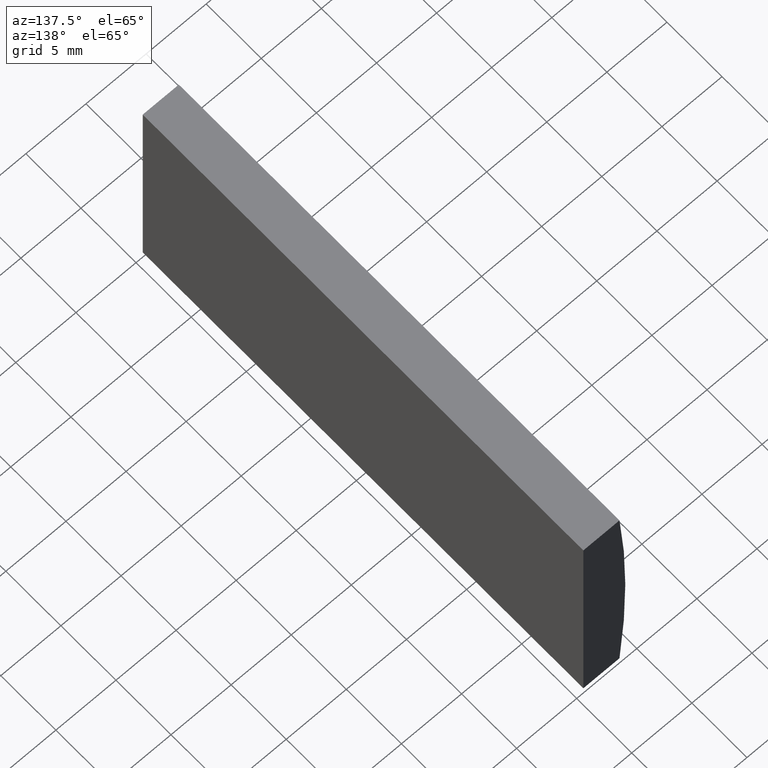
[diagram: clean part render]
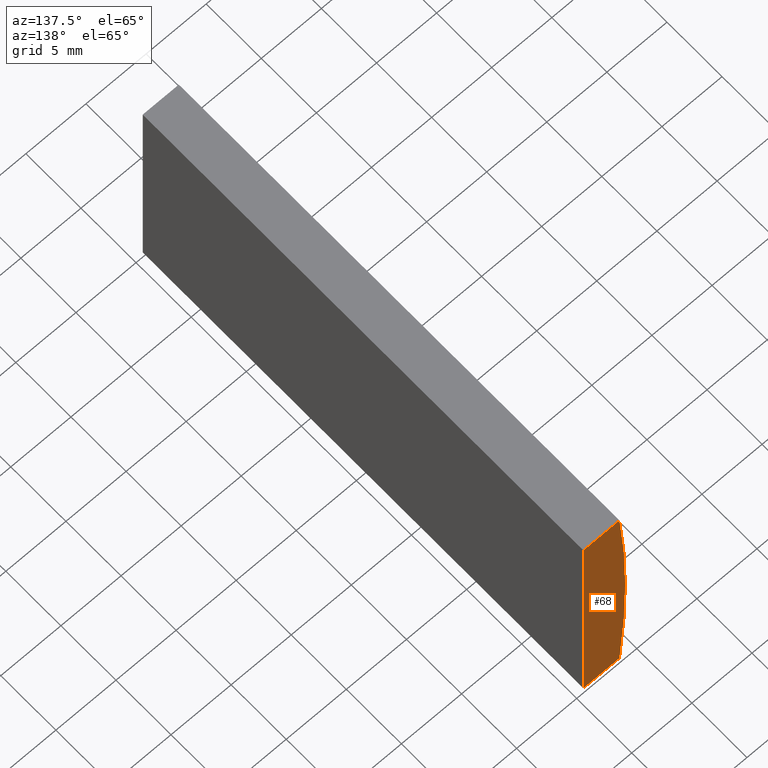
[diagram: same view with one face highlighted and labeled with its STEP entity id]
A machine part, auxiliary view. The second image highlights one B-rep face of the part: STEP entity #68.
In plain terms, the highlighted planar face has unit normal (0, 1, 0).
Its self-contained STEP definition (entity closure, byte-faithful):
#8 = CARTESIAN_POINT ( 'NONE',  ( -95.55479566514874500, 40.00000000000000000, -10.00000000000000400 ) ) ;
#9 = CARTESIAN_POINT ( 'NONE',  ( 4.355204334851265500, 40.00000000000000000, 4.286263797015675000E-017 ) ) ;
#12 = ORIENTED_EDGE ( 'NONE', *, *, #99, .T. ) ;
#22 = EDGE_CURVE ( 'NONE', #28, #172, #199, .T. ) ;
#25 = DIRECTION ( 'NONE',  ( 1.000000000000000000, 0.0000000000000000000, 0.0000000000000000000 ) ) ;
#28 = VERTEX_POINT ( 'NONE', #8 ) ;
#33 = CARTESIAN_POINT ( 'NONE',  ( -98.56010064939295000, 40.00000000000000000, -10.00000000000000000 ) ) ;
#34 = LINE ( 'NONE', #198, #162 ) ;
#35 = VECTOR ( 'NONE', #187, 1000.000000000000000 ) ;
#38 = CARTESIAN_POINT ( 'NONE',  ( -98.56010064939296500, 40.00000000000000000, 10.00000000000000000 ) ) ;
#39 = VERTEX_POINT ( 'NONE', #169 ) ;
#47 = AXIS2_PLACEMENT_3D ( 'NONE', #9, #138, #125 ) ;
#56 = DIRECTION ( 'NONE',  ( 0.0000000000000000000, 0.0000000000000000000, 1.000000000000000000 ) ) ;
#68 = ADVANCED_FACE ( 'NONE', ( #79 ), #75, .T. ) ;
#75 = PLANE ( 'NONE',  #47 ) ;
#79 = FACE_OUTER_BOUND ( 'NONE', #137, .T. ) ;
#84 = VECTOR ( 'NONE', #115, 1000.000000000000000 ) ;
#91 = EDGE_CURVE ( 'NONE', #39, #28, #203, .T. ) ;
#99 = EDGE_CURVE ( 'NONE', #172, #171, #139, .T. ) ;
#106 = EDGE_CURVE ( 'NONE', #171, #39, #34, .T. ) ;
#115 = DIRECTION ( 'NONE',  ( -0.0000000000000000000, -0.0000000000000000000, -1.000000000000000000 ) ) ;
#118 = CARTESIAN_POINT ( 'NONE',  ( 4.355204334851265500, 40.00000000000000000, 4.286263797015675000E-017 ) ) ;
#125 = DIRECTION ( 'NONE',  ( 0.0000000000000000000, -0.0000000000000000000, 1.000000000000000000 ) ) ;
#134 = ORIENTED_EDGE ( 'NONE', *, *, #91, .T. ) ;
#135 = AXIS2_PLACEMENT_3D ( 'NONE', #118, #196, #56 ) ;
#137 = EDGE_LOOP ( 'NONE', ( #12, #147, #134, #154 ) ) ;
#138 = DIRECTION ( 'NONE',  ( 0.0000000000000000000, 1.000000000000000000, 0.0000000000000000000 ) ) ;
#139 = CIRCLE ( 'NONE', #135, 103.4000000000000200 ) ;
#147 = ORIENTED_EDGE ( 'NONE', *, *, #106, .T. ) ;
#154 = ORIENTED_EDGE ( 'NONE', *, *, #22, .T. ) ;
#155 = CARTESIAN_POINT ( 'NONE',  ( -95.55479566514874500, 40.00000000000000000, -10.00000000000000400 ) ) ;
#162 = VECTOR ( 'NONE', #25, 1000.000000000000000 ) ;
#169 = CARTESIAN_POINT ( 'NONE',  ( -95.55479566514874500, 40.00000000000000000, 10.00000000000000000 ) ) ;
#171 = VERTEX_POINT ( 'NONE', #38 ) ;
#172 = VERTEX_POINT ( 'NONE', #184 ) ;
#184 = CARTESIAN_POINT ( 'NONE',  ( -98.56010064939295000, 40.00000000000000000, -10.00000000000000000 ) ) ;
#187 = DIRECTION ( 'NONE',  ( -1.000000000000000000, -0.0000000000000000000, 1.154440887078928100E-015 ) ) ;
#196 = DIRECTION ( 'NONE',  ( 0.0000000000000000000, 1.000000000000000000, 0.0000000000000000000 ) ) ;
#198 = CARTESIAN_POINT ( 'NONE',  ( -98.56010064939296500, 40.00000000000000000, 10.00000000000000000 ) ) ;
#199 = LINE ( 'NONE', #33, #35 ) ;
#203 = LINE ( 'NONE', #155, #84 ) ;